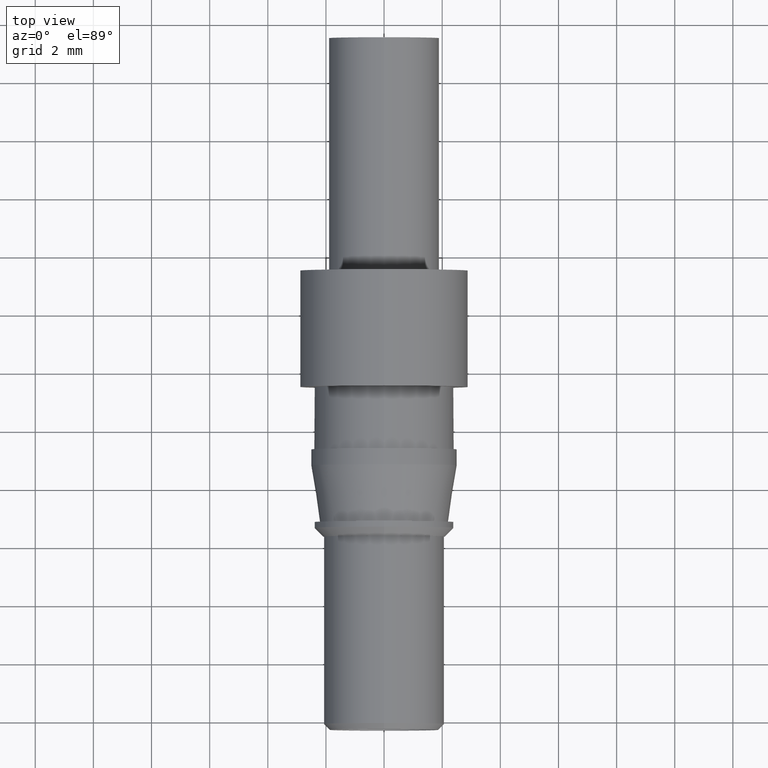
[diagram: clean part render]
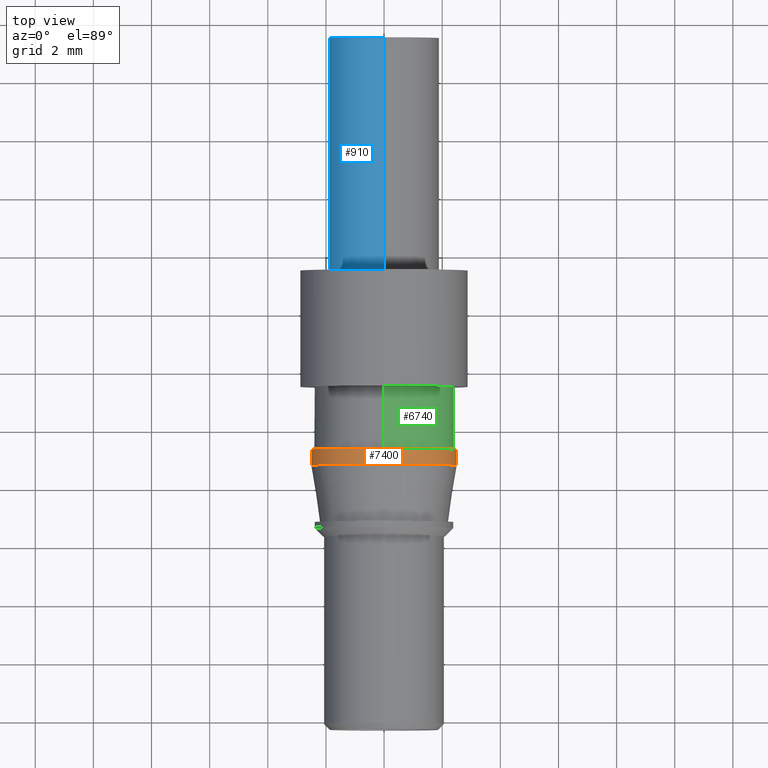
[diagram: same view with three faces highlighted in distinct colors, each labeled with its STEP entity id]
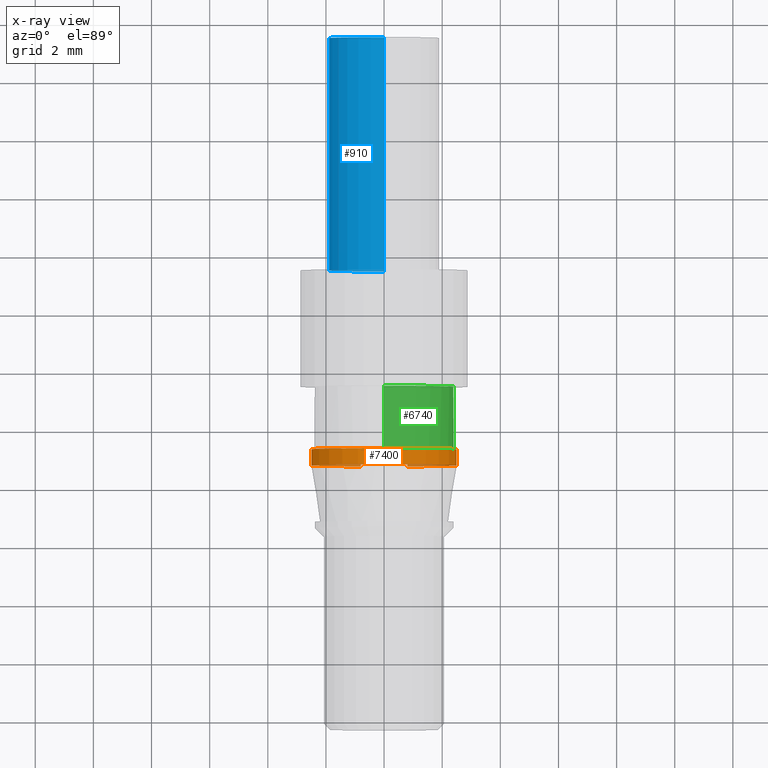
[diagram: x-ray of the same camera — body ghosted, the three highlighted faces saturated]
A machine part, top view with three faces highlighted in distinct colors.
The next image is the same camera in x-ray (body ghosted, the three faces saturated) — at least one of them is partly hidden behind the body in this view.
Their STEP definitions:

[orange] entity #7400 — the highlighted cylindrical surface (partial cylindrical patch) has radius 2.5 mm, axis along (-0, -1, 0).
#3530=CARTESIAN_POINT('',(67.4468230000002,75.0109711435309,
-11.3999999999995));
#3540=VERTEX_POINT('',#3530);
#3570=CARTESIAN_POINT('',(67.4468230000002,75.0109711435309,
-11.6749999999995));
#3580=DIRECTION('',(0.,0.,-1.));
#3590=VECTOR('',#3580,1.);
#3600=LINE('',#3570,#3590);
#3610=CARTESIAN_POINT('',(67.4468230000002,75.0109711435309,
-11.9499999999995));
#3620=VERTEX_POINT('',#3610);
#3630=EDGE_CURVE('',#3540,#3620,#3600,.T.);
#6950=CARTESIAN_POINT('',(65.8468230000002,75.0109711435309,
-11.3999999999995));
#6960=VERTEX_POINT('',#6950);
#6990=CARTESIAN_POINT('',(66.6468230000002,77.3795149999963,
-11.3999999999995));
#7000=DIRECTION('',(0.,0.,1.));
#7010=DIRECTION('',(0.,1.,0.));
#7020=AXIS2_PLACEMENT_3D('',#6990,#7000,#7010);
#7030=CIRCLE('',#7020,2.5);
#7040=EDGE_CURVE('',#3540,#6960,#7030,.T.);
#7160=CARTESIAN_POINT('',(66.6468230000002,77.3795149999963,
-11.6749999999995));
#7170=DIRECTION('',(0.,0.,-1.));
#7180=DIRECTION('',(0.,-1.,0.));
#7190=AXIS2_PLACEMENT_3D('',#7160,#7170,#7180);
#7200=CYLINDRICAL_SURFACE('',#7190,2.5);
#7210=ORIENTED_EDGE('',*,*,#3630,.T.);
#7220=ORIENTED_EDGE('',*,*,#7040,.F.);
#7230=CARTESIAN_POINT('',(65.8468230000002,75.0109711435309,
-11.6749999999995));
#7240=DIRECTION('',(0.,0.,-1.));
#7250=VECTOR('',#7240,1.);
#7260=LINE('',#7230,#7250);
#7270=CARTESIAN_POINT('',(65.8468230000002,75.0109711435309,
-11.9499999999995));
#7280=VERTEX_POINT('',#7270);
#7290=EDGE_CURVE('',#6960,#7280,#7260,.T.);
#7300=ORIENTED_EDGE('',*,*,#7290,.F.);
#7310=CARTESIAN_POINT('',(66.6468230000002,77.3795149999963,
-11.9499999999995));
#7320=DIRECTION('',(0.,0.,1.));
#7330=DIRECTION('',(0.,1.,0.));
#7340=AXIS2_PLACEMENT_3D('',#7310,#7320,#7330);
#7350=CIRCLE('',#7340,2.5);
#7360=EDGE_CURVE('',#3620,#7280,#7350,.T.);
#7370=ORIENTED_EDGE('',*,*,#7360,.T.);
#7380=EDGE_LOOP('',(#7370,#7300,#7220,#7210));
#7390=FACE_OUTER_BOUND('',#7380,.T.);
#7400=ADVANCED_FACE('',(#7390),#7200,.T.);

[blue] entity #910 — the highlighted cylindrical surface (partial cylindrical patch) has radius 1.9 mm, axis along (0, 1, -0).
#500=CARTESIAN_POINT('',(66.6468230000002,77.3795149999963,
-5.24999999999949));
#510=DIRECTION('',(0.,0.,1.));
#520=DIRECTION('',(0.,1.,0.));
#530=AXIS2_PLACEMENT_3D('',#500,#510,#520);
#540=CYLINDRICAL_SURFACE('',#530,1.9);
#550=CARTESIAN_POINT('',(66.6468230000002,79.2795149999963,
-5.24999999999949));
#560=DIRECTION('',(0.,0.,1.));
#570=VECTOR('',#560,1.);
#580=LINE('',#550,#570);
#590=CARTESIAN_POINT('',(66.6468230000002,79.2795149999963,
-5.24999999999949));
#600=VERTEX_POINT('',#590);
#610=CARTESIAN_POINT('',(66.6468230000002,79.2795149999963,
2.75000000000051));
#620=VERTEX_POINT('',#610);
#630=EDGE_CURVE('',#600,#620,#580,.T.);
#640=ORIENTED_EDGE('',*,*,#630,.T.);
#650=CARTESIAN_POINT('',(66.6468230000002,77.3795149999963,
-5.24999999999949));
#660=DIRECTION('',(0.,0.,1.));
#670=DIRECTION('',(0.,1.,0.));
#680=AXIS2_PLACEMENT_3D('',#650,#660,#670);
#690=CIRCLE('',#680,1.9);
#700=CARTESIAN_POINT('',(66.6468230000002,75.4795149999963,
-5.24999999999949));
#710=VERTEX_POINT('',#700);
#720=EDGE_CURVE('',#710,#600,#690,.T.);
#730=ORIENTED_EDGE('',*,*,#720,.T.);
#740=CARTESIAN_POINT('',(66.6468230000002,75.4795149999963,
-5.24999999999949));
#750=DIRECTION('',(0.,0.,1.));
#760=VECTOR('',#750,1.);
#770=LINE('',#740,#760);
#780=CARTESIAN_POINT('',(66.6468230000002,75.4795149999963,
2.75000000000051));
#790=VERTEX_POINT('',#780);
#800=EDGE_CURVE('',#710,#790,#770,.T.);
#810=ORIENTED_EDGE('',*,*,#800,.F.);
#820=CARTESIAN_POINT('',(66.6468230000002,77.3795149999963,
2.75000000000051));
#830=DIRECTION('',(0.,0.,1.));
#840=DIRECTION('',(0.,1.,0.));
#850=AXIS2_PLACEMENT_3D('',#820,#830,#840);
#860=CIRCLE('',#850,1.9);
#870=EDGE_CURVE('',#790,#620,#860,.T.);
#880=ORIENTED_EDGE('',*,*,#870,.F.);
#890=EDGE_LOOP('',(#880,#810,#730,#640));
#900=FACE_OUTER_BOUND('',#890,.T.);
#910=ADVANCED_FACE('',(#900),#540,.T.);

[green] entity #6740 — the highlighted cylindrical surface (partial cylindrical patch) has radius 2.4 mm, axis along (-0, -1, 0).
#5000=CARTESIAN_POINT('',(66.6468230000002,77.3795149999963,
-11.3999999999995));
#5010=DIRECTION('',(0.,0.,-1.));
#5020=DIRECTION('',(0.,-1.,0.));
#5030=AXIS2_PLACEMENT_3D('',#5000,#5010,#5020);
#5040=CIRCLE('',#5030,2.39999999999998);
#5050=CARTESIAN_POINT('',(66.6468230000002,74.9795149999964,
-11.3999999999995));
#5060=VERTEX_POINT('',#5050);
#5230=CARTESIAN_POINT('',(65.8468230000002,75.1167733001994,
-11.3999999999995));
#5240=VERTEX_POINT('',#5230);
#5270=EDGE_CURVE('',#5060,#5240,#5040,.T.);
#6160=CARTESIAN_POINT('',(66.6468230000002,77.3795149999963,
-9.2499999999995));
#6170=DIRECTION('',(0.,0.,-1.));
#6180=DIRECTION('',(0.,-1.,0.));
#6190=AXIS2_PLACEMENT_3D('',#6160,#6170,#6180);
#6200=CIRCLE('',#6190,2.39999999999998);
#6210=CARTESIAN_POINT('',(66.6468230000002,74.9795149999964,
-9.2499999999995));
#6220=VERTEX_POINT('',#6210);
#6230=CARTESIAN_POINT('',(66.6468230000002,79.7795149999963,
-9.2499999999995));
#6240=VERTEX_POINT('',#6230);
#6250=EDGE_CURVE('',#6220,#6240,#6200,.T.);
#6440=CARTESIAN_POINT('',(66.6468230000002,77.3795149999963,
-10.2499999999995));
#6450=DIRECTION('',(0.,0.,-1.));
#6460=DIRECTION('',(0.,-1.,0.));
#6470=AXIS2_PLACEMENT_3D('',#6440,#6450,#6460);
#6480=CYLINDRICAL_SURFACE('',#6470,2.39999999999998);
#6490=CARTESIAN_POINT('',(66.6468230000002,79.7795149999963,
-10.2499999999995));
#6500=DIRECTION('',(0.,0.,-1.));
#6510=VECTOR('',#6500,1.);
#6520=LINE('',#6490,#6510);
#6530=CARTESIAN_POINT('',(66.6468230000002,79.7795149999963,
-11.3999999999995));
#6540=VERTEX_POINT('',#6530);
#6550=EDGE_CURVE('',#6240,#6540,#6520,.T.);
#6560=ORIENTED_EDGE('',*,*,#6550,.T.);
#6570=ORIENTED_EDGE('',*,*,#6250,.T.);
#6580=CARTESIAN_POINT('',(66.6468230000002,74.9795149999964,
-10.2499999999995));
#6590=DIRECTION('',(0.,0.,-1.));
#6600=VECTOR('',#6590,1.);
#6610=LINE('',#6580,#6600);
#6620=EDGE_CURVE('',#6220,#5060,#6610,.T.);
#6630=ORIENTED_EDGE('',*,*,#6620,.F.);
#6640=ORIENTED_EDGE('',*,*,#5270,.F.);
#6650=CARTESIAN_POINT('',(66.6468230000002,77.3795149999963,
-11.3999999999995));
#6660=DIRECTION('',(0.,0.,1.));
#6670=DIRECTION('',(0.,1.,0.));
#6680=AXIS2_PLACEMENT_3D('',#6650,#6660,#6670);
#6690=CIRCLE('',#6680,2.39999999999998);
#6700=EDGE_CURVE('',#6540,#5240,#6690,.T.);
#6710=ORIENTED_EDGE('',*,*,#6700,.T.);
#6720=EDGE_LOOP('',(#6710,#6640,#6630,#6570,#6560));
#6730=FACE_OUTER_BOUND('',#6720,.T.);
#6740=ADVANCED_FACE('',(#6730),#6480,.T.);